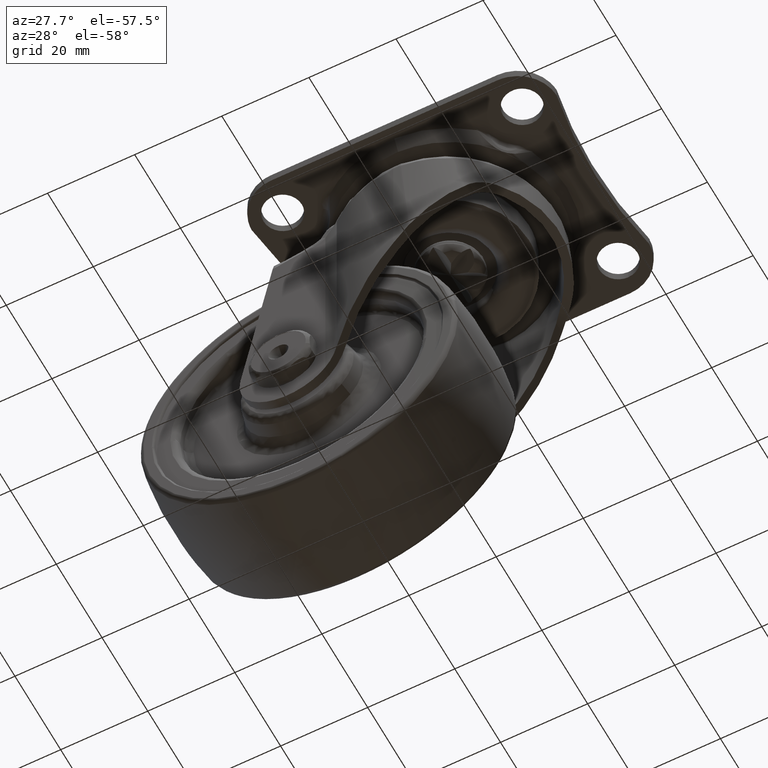
[diagram: clean part render]
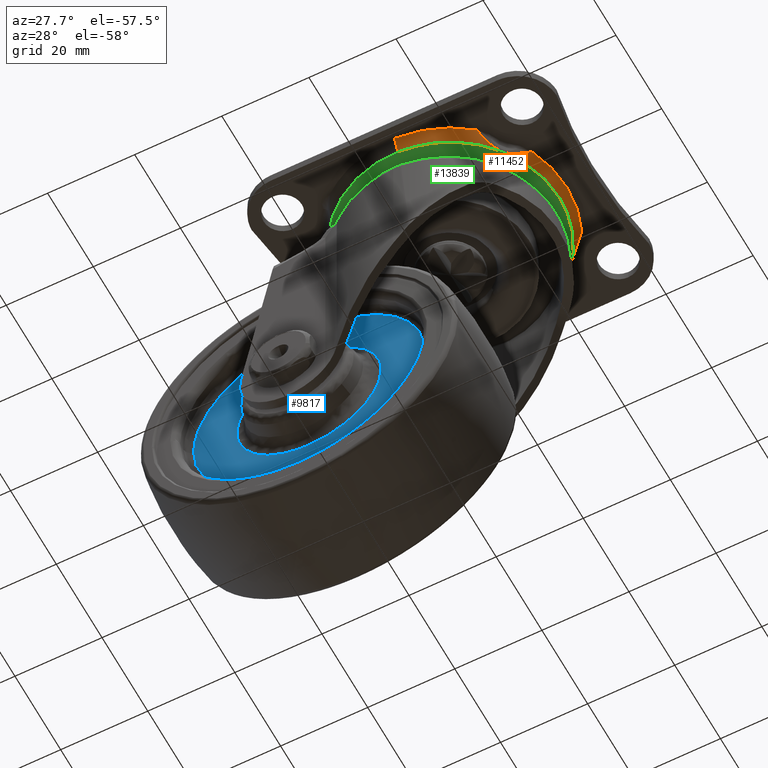
[diagram: same view with three faces highlighted in distinct colors, each labeled with its STEP entity id]
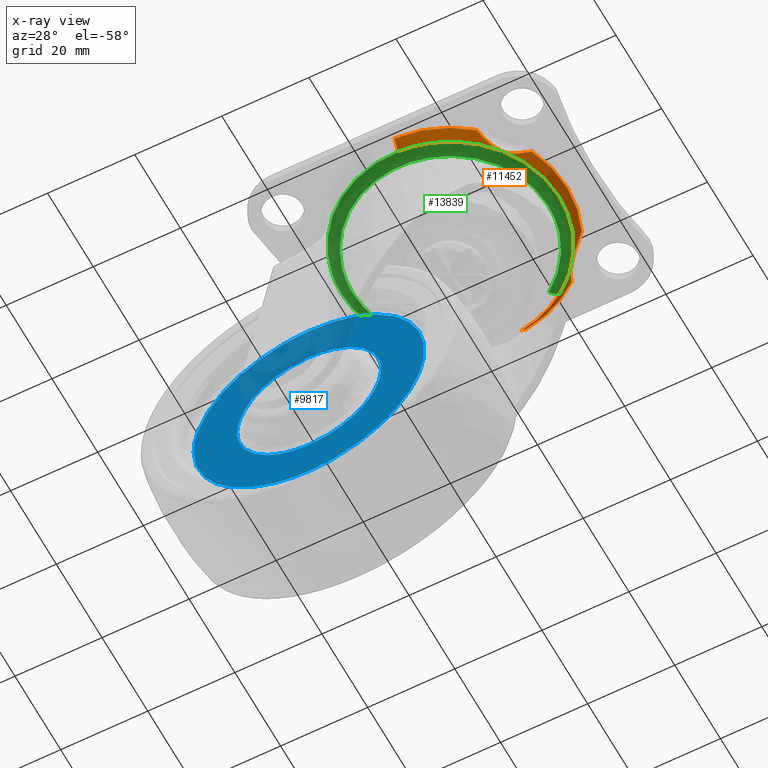
[diagram: x-ray of the same camera — body ghosted, the three highlighted faces saturated]
A machine part, auxiliary view with three faces highlighted in distinct colors.
The next image is the same camera in x-ray (body ghosted, the three faces saturated) — at least one of them is partly hidden behind the body in this view.
Their STEP definitions:

[orange] entity #11452 — the highlighted face is a freeform B-spline surface patch.
#11155=CARTESIAN_POINT('',(3.283637702948342,24.797609182658551,-5.336904997955588));
#11156=VERTEX_POINT('',#11155);
#11187=CARTESIAN_POINT('',(1.094881871424335,-24.990096671537049,-5.336904999992546));
#11188=VERTEX_POINT('',#11187);
#11204=CARTESIAN_POINT('',(1.170558709874944,-26.717380267707600,-2.681590920089541));
#11205=VERTEX_POINT('',#11204);
#11206=CARTESIAN_POINT('',(1.094881871424335,-24.990096671537049,-5.336904999992546));
#11207=CARTESIAN_POINT('',(1.170558709874944,-26.717380267707600,-2.681590920089541));
#11208=QUASI_UNIFORM_CURVE('',1,(#11206,#11207),.UNSPECIFIED.,.F.,.U.);
#11209=EDGE_CURVE('',#11188,#11205,#11208,.T.);
#11281=CARTESIAN_POINT('',(3.510595644554331,26.511566337994591,-2.681544139607476));
#11282=VERTEX_POINT('',#11281);
#11296=CARTESIAN_POINT('',(3.283637702948342,24.797609182658551,-5.336904997955588));
#11297=CARTESIAN_POINT('',(3.510595644554331,26.511566337994591,-2.681544139607476));
#11298=QUASI_UNIFORM_CURVE('',1,(#11296,#11297),.UNSPECIFIED.,.F.,.U.);
#11299=EDGE_CURVE('',#11156,#11282,#11298,.T.);
#11304=CARTESIAN_POINT('',(1.092989993032756,-24.946915553969781,-5.403288964165967));
#11305=CARTESIAN_POINT('',(26.039905547002522,-23.853925560937022,-5.403288964165967));
#11306=CARTESIAN_POINT('',(24.946915553969770,1.092989993032742,-5.403288964165967));
#11307=CARTESIAN_POINT('',(24.030628960200151,22.006744394918016,-5.403288964165967));
#11308=CARTESIAN_POINT('',(3.277963810090154,24.754760674292680,-5.403288964165968));
#11309=CARTESIAN_POINT('',(1.172496180607248,-26.761602019612010,-2.613502870087913));
#11310=CARTESIAN_POINT('',(27.934098200219239,-25.589105839004766,-2.613502870087913));
#11311=CARTESIAN_POINT('',(26.761602019611999,1.172496180607234,-2.613502870087913));
#11312=CARTESIAN_POINT('',(25.778662982306173,23.607557173552323,-2.613502870087912));
#11313=CARTESIAN_POINT('',(3.516409182150953,26.555469425587706,-2.613502870087914));
#11321=(BOUNDED_SURFACE()B_SPLINE_SURFACE(2,1,((#11304,#11309),(#11305,#11310),(#11306,#11311),(#11307,#11312),(#11308,#11313)),.UNSPECIFIED.,.F.,.F.,.U.)B_SPLINE_SURFACE_WITH_KNOTS((3,2,3),(2,2),(0.0,44.382610045699948,83.439306885915897),(0.0,3.329011062336535),.UNSPECIFIED.)GEOMETRIC_REPRESENTATION_ITEM()RATIONAL_B_SPLINE_SURFACE(((1.0,1.0),(0.707106781186548,0.707106781186548),(1.0,1.0),(0.742253967444162,0.742253967444162),(0.938140952186599,0.938140952186599)))REPRESENTATION_ITEM('')SURFACE());
#11322=CARTESIAN_POINT('',(14.332695343603440,20.500671502809482,-5.336904901848820));
#11323=VERTEX_POINT('',#11322);
#11324=CARTESIAN_POINT('',(3.283637702948342,24.797609182658551,-5.336904997955588));
#11325=CARTESIAN_POINT('',(9.332216365766131,23.996671409819310,-5.336904977874955));
#11326=CARTESIAN_POINT('',(14.332695343603442,20.500671502809489,-5.336904901848820));
#11334=(BOUNDED_CURVE()B_SPLINE_CURVE(2,(#11324,#11325,#11326),.UNSPECIFIED.,.F.,.U.)B_SPLINE_CURVE_WITH_KNOTS((3,3),(0.272687126475683,0.348488271145880),.UNSPECIFIED.)CURVE()GEOMETRIC_REPRESENTATION_ITEM()RATIONAL_B_SPLINE_CURVE((0.951664877974533,0.878976439143544,0.860141114567713))REPRESENTATION_ITEM(''));
#11335=EDGE_CURVE('',#11156,#11323,#11334,.T.);
#11336=ORIENTED_EDGE('',*,*,#11335,.F.);
#11337=ORIENTED_EDGE('',*,*,#11299,.T.);
#11338=CARTESIAN_POINT('',(16.923396694074398,20.707128679232550,-2.681546433358110));
#11339=VERTEX_POINT('',#11338);
#11340=CARTESIAN_POINT('',(3.510595644554331,26.511566337994591,-2.681544139607476));
#11341=CARTESIAN_POINT('',(11.041389117060669,25.514338836589307,-2.681544997755576));
#11342=CARTESIAN_POINT('',(16.923396694074398,20.707128679232550,-2.681546433358110));
#11350=(BOUNDED_CURVE()B_SPLINE_CURVE(2,(#11340,#11341,#11342),.UNSPECIFIED.,.F.,.U.)B_SPLINE_CURVE_WITH_KNOTS((3,3),(0.592414418100761,1.0),.UNSPECIFIED.)CURVE()GEOMETRIC_REPRESENTATION_ITEM()RATIONAL_B_SPLINE_CURVE((0.891006852976077,0.908009373427011,1.0))REPRESENTATION_ITEM(''));
#11351=EDGE_CURVE('',#11282,#11339,#11350,.T.);
#11352=ORIENTED_EDGE('',*,*,#11351,.T.);
#11353=CARTESIAN_POINT('',(24.432678122186751,10.873647035149441,-2.681558286846105));
#11354=VERTEX_POINT('',#11353);
#11355=CARTESIAN_POINT('',(16.923396694074398,20.707128679232550,-2.681546433358110));
#11356=CARTESIAN_POINT('',(16.959476209559710,20.624237199548570,-2.745023668475268));
#11357=CARTESIAN_POINT('',(17.072956316216992,20.364707727036340,-2.941403772775208));
#11358=CARTESIAN_POINT('',(17.265224100468899,19.931181044673082,-3.258082135539941));
#11359=CARTESIAN_POINT('',(17.502477298147902,19.408855884505279,-3.617863449230749));
#11360=CARTESIAN_POINT('',(17.740843929578030,18.898215233974611,-3.947214621208377));
#11361=CARTESIAN_POINT('',(18.169607694862290,18.005009015585848,-4.482426018704327));
#11362=CARTESIAN_POINT('',(18.815496821407059,16.764068200806989,-5.086689961431429));
#11363=CARTESIAN_POINT('',(19.869884563908631,15.168243004630479,-5.397430747311278));
#11364=CARTESIAN_POINT('',(21.132343390763879,13.732833152639460,-5.083574954406630));
#11365=CARTESIAN_POINT('',(22.304517048367710,12.649556383199389,-4.393791752733161));
#11366=CARTESIAN_POINT('',(23.352542966424810,11.753914702586890,-3.613187368044796));
#11367=CARTESIAN_POINT('',(23.998929724998881,11.222537977420700,-3.072151709919865));
#11368=CARTESIAN_POINT('',(24.362388286578941,10.930029070077341,-2.745415735215331));
#11369=CARTESIAN_POINT('',(24.432678122186751,10.873647035149441,-2.681558286846105));
#11370=B_SPLINE_CURVE_WITH_KNOTS('',3,(#11355,#11356,#11357,#11358,#11359,#11360,#11361,#11362,#11363,#11364,#11365,#11366,#11367,#11368,#11369),.UNSPECIFIED.,.F.,.U.,(4,1,1,1,1,1,1,1,1,1,1,1,4),(0.071794579712360,0.092374084994704,0.136005364772001,0.178026970883490,0.218519968372902,0.257574848939736,0.387883343328172,0.500350351611895,0.612488444453185,0.742726897194357,0.822091862652027,0.907643145491309,0.928222205426478),.UNSPECIFIED.);
#11371=EDGE_CURVE('',#11339,#11354,#11370,.T.);
#11372=ORIENTED_EDGE('',*,*,#11371,.T.);
#11373=CARTESIAN_POINT('',(24.432516070442649,-10.873761643096040,-2.681546433358110));
#11374=VERTEX_POINT('',#11373);
#11375=CARTESIAN_POINT('',(24.432678122186751,10.873647035149441,-2.681558286846105));
#11376=CARTESIAN_POINT('',(29.271919797872830,-0.000072739264834,-2.681552360102107));
#11377=CARTESIAN_POINT('',(24.432516070442649,-10.873761643096040,-2.681546433358110));
#11385=(BOUNDED_CURVE()B_SPLINE_CURVE(2,(#11375,#11376,#11377),.UNSPECIFIED.,.F.,.U.)CURVE()GEOMETRIC_REPRESENTATION_ITEM()QUASI_UNIFORM_CURVE()RATIONAL_B_SPLINE_CURVE((1.0,0.913606425390640,1.0))REPRESENTATION_ITEM(''));
#11386=EDGE_CURVE('',#11354,#11374,#11385,.T.);
#11387=ORIENTED_EDGE('',*,*,#11386,.T.);
#11388=CARTESIAN_POINT('',(16.923357323590999,-20.707160855640350,-2.681546433358110));
#11389=VERTEX_POINT('',#11388);
#11390=CARTESIAN_POINT('',(24.432516070442649,-10.873761643096040,-2.681546433358110));
#11391=CARTESIAN_POINT('',(24.362049836409099,-10.930393748703340,-2.745023100823632));
#11392=CARTESIAN_POINT('',(24.141559318651701,-11.108204846892511,-2.941401425796306));
#11393=CARTESIAN_POINT('',(23.773957345949970,-11.407837733432720,-3.258076805672700));
#11394=CARTESIAN_POINT('',(23.332535610445401,-11.774249668368400,-3.617854503470382));
#11395=CARTESIAN_POINT('',(22.902679235243969,-12.138659126141899,-3.947202115210363));
#11396=CARTESIAN_POINT('',(22.153891098707589,-12.787478412678380,-4.482407238753336));
#11397=CARTESIAN_POINT('',(21.126810874778840,-13.737321208619999,-5.086662267774504));
#11398=CARTESIAN_POINT('',(19.864931754704639,-15.174689345370551,-5.397390711776832));
#11399=CARTESIAN_POINT('',(18.812594556998949,-16.770546736961229,-5.083522584066095));
#11400=CARTESIAN_POINT('',(18.076191126871759,-18.186586168988800,-4.393729211679108));
#11401=CARTESIAN_POINT('',(17.488111970147440,-19.433453662762901,-3.613116108041110));
#11402=CARTESIAN_POINT('',(17.145700945927331,-20.196913071473041,-3.072096540187697));
#11403=CARTESIAN_POINT('',(16.959229065929719,-20.624535142182740,-2.745381365994009));
#11404=CARTESIAN_POINT('',(16.923357323590999,-20.707160855640350,-2.681546433358110));
#11405=B_SPLINE_CURVE_WITH_KNOTS('',3,(#11390,#11391,#11392,#11393,#11394,#11395,#11396,#11397,#11398,#11399,#11400,#11401,#11402,#11403,#11404),.UNSPECIFIED.,.F.,.U.,(4,1,1,1,1,1,1,1,1,1,1,1,4),(0.071794579712430,0.092374084995471,0.136005364772854,0.178026970884233,0.218519968373342,0.257574848939678,0.387883343327662,0.500350351611862,0.612488444452482,0.742726897194326,0.822091862650179,0.907643145489459,0.928214882234636),.UNSPECIFIED.);
#11406=EDGE_CURVE('',#11374,#11389,#11405,.T.);
#11407=ORIENTED_EDGE('',*,*,#11406,.T.);
#11408=CARTESIAN_POINT('',(16.923357323590999,-20.707160855640350,-2.681546433358110));
#11409=CARTESIAN_POINT('',(10.045145659853175,-26.328510573036322,-2.681563890555316));
#11410=CARTESIAN_POINT('',(1.170558709874944,-26.717380267707604,-2.681590920089542));
#11418=(BOUNDED_CURVE()B_SPLINE_CURVE(2,(#11408,#11409,#11410),.UNSPECIFIED.,.F.,.U.)B_SPLINE_CURVE_WITH_KNOTS((3,3),(0.0,0.469302746160513),.UNSPECIFIED.)CURVE()GEOMETRIC_REPRESENTATION_ITEM()RATIONAL_B_SPLINE_CURVE((1.0,0.894080095714485,0.887577195337471))REPRESENTATION_ITEM(''));
#11419=EDGE_CURVE('',#11389,#11205,#11418,.T.);
#11420=ORIENTED_EDGE('',*,*,#11419,.T.);
#11421=ORIENTED_EDGE('',*,*,#11209,.F.);
#11422=CARTESIAN_POINT('',(25.014070000000000,-1.421085E-014,-5.336904999999921));
#11423=VERTEX_POINT('',#11422);
#11424=CARTESIAN_POINT('',(25.014070000000000,-1.421085E-014,-5.336904999999921));
#11425=CARTESIAN_POINT('',(25.014069999999993,-23.942134120349593,-5.336904999999921));
#11426=CARTESIAN_POINT('',(1.094881871424335,-24.990096671537053,-5.336904999992547));
#11434=(BOUNDED_CURVE()B_SPLINE_CURVE(2,(#11424,#11425,#11426),.UNSPECIFIED.,.F.,.U.)B_SPLINE_CURVE_WITH_KNOTS((3,3),(0.500000000000000,0.742328240502856),.UNSPECIFIED.)CURVE()GEOMETRIC_REPRESENTATION_ITEM()RATIONAL_B_SPLINE_CURVE((1.0,0.716094806518872,0.982575581084981))REPRESENTATION_ITEM(''));
#11435=EDGE_CURVE('',#11423,#11188,#11434,.T.);
#11436=ORIENTED_EDGE('',*,*,#11435,.F.);
#11437=CARTESIAN_POINT('',(14.332695343603440,20.500671502809485,-5.336904901848820));
#11438=CARTESIAN_POINT('',(25.014070000000000,13.032970567437694,-5.336904999999922));
#11439=CARTESIAN_POINT('',(25.014070000000000,-1.421085E-014,-5.336904999999921));
#11447=(BOUNDED_CURVE()B_SPLINE_CURVE(2,(#11437,#11438,#11439),.UNSPECIFIED.,.F.,.U.)B_SPLINE_CURVE_WITH_KNOTS((3,3),(0.348488271145880,0.500000000000000),.UNSPECIFIED.)CURVE()GEOMETRIC_REPRESENTATION_ITEM()RATIONAL_B_SPLINE_CURVE((0.860141114567713,0.822492968191703,1.0))REPRESENTATION_ITEM(''));
#11448=EDGE_CURVE('',#11323,#11423,#11447,.T.);
#11449=ORIENTED_EDGE('',*,*,#11448,.F.);
#11450=EDGE_LOOP('',(#11336,#11337,#11352,#11372,#11387,#11407,#11420,#11421,#11436,#11449));
#11451=FACE_OUTER_BOUND('',#11450,.T.);
#11452=ADVANCED_FACE('',(#11451),#11321,.T.);

[blue] entity #9817 — the highlighted face is a freeform B-spline surface patch.
#7724=CARTESIAN_POINT('',(-44.118189326483943,-8.499999999999881,-59.209332737446928));
#7725=VERTEX_POINT('',#7724);
#7739=CARTESIAN_POINT('',(-28.0,-8.499999999999879,-72.039508170618205));
#7740=VERTEX_POINT('',#7739);
#7741=CARTESIAN_POINT('',(-44.118189326483929,-8.499999999999883,-59.209332737446928));
#7742=CARTESIAN_POINT('',(-41.165542984019304,-8.499999999999881,-72.039508170618205));
#7743=CARTESIAN_POINT('',(-28.0,-8.499999999999879,-72.039508170618205));
#7751=(BOUNDED_CURVE()B_SPLINE_CURVE(2,(#7741,#7742,#7743),.UNSPECIFIED.,.F.,.U.)B_SPLINE_CURVE_WITH_KNOTS((3,3),(0.788352912386074,1.0),.UNSPECIFIED.)CURVE()GEOMETRIC_REPRESENTATION_ITEM()RATIONAL_B_SPLINE_CURVE((0.923920098754385,0.752040013025057,1.0))REPRESENTATION_ITEM(''));
#7752=EDGE_CURVE('',#7725,#7740,#7751,.T.);
#7754=CARTESIAN_POINT('',(-11.881810673516069,-8.499999999999881,-51.790679262552679));
#7755=VERTEX_POINT('',#7754);
#7756=CARTESIAN_POINT('',(-28.0,-8.499999999999879,-72.039508170618205));
#7757=CARTESIAN_POINT('',(-11.460497829381598,-8.499999999999879,-72.039508170618220));
#7758=CARTESIAN_POINT('',(-11.460497829381600,-8.499999999999879,-55.500005999999800));
#7759=CARTESIAN_POINT('',(-11.460497829381600,-8.499999999999879,-53.621415848063222));
#7760=CARTESIAN_POINT('',(-11.881810673516069,-8.499999999999881,-51.790679262552686));
#7768=(BOUNDED_CURVE()B_SPLINE_CURVE(2,(#7756,#7757,#7758,#7759,#7760),.UNSPECIFIED.,.F.,.U.)B_SPLINE_CURVE_WITH_KNOTS((3,2,3),(0.0,0.250000000000000,0.288352912386074),.UNSPECIFIED.)CURVE()GEOMETRIC_REPRESENTATION_ITEM()RATIONAL_B_SPLINE_CURVE((1.0,0.707106781186548,1.0,0.955066768161490,0.923920098754385))REPRESENTATION_ITEM(''));
#7769=EDGE_CURVE('',#7740,#7755,#7768,.T.);
#7815=CARTESIAN_POINT('',(-28.0,-8.499999999999879,-38.960503829381402));
#7816=VERTEX_POINT('',#7815);
#7817=CARTESIAN_POINT('',(-11.881810673516069,-8.499999999999881,-51.790679262552686));
#7818=CARTESIAN_POINT('',(-14.834457015980705,-8.499999999999879,-38.960503829381416));
#7819=CARTESIAN_POINT('',(-28.0,-8.499999999999879,-38.960503829381402));
#7827=(BOUNDED_CURVE()B_SPLINE_CURVE(2,(#7817,#7818,#7819),.UNSPECIFIED.,.F.,.U.)B_SPLINE_CURVE_WITH_KNOTS((3,3),(0.288352912386074,0.500000000000000),.UNSPECIFIED.)CURVE()GEOMETRIC_REPRESENTATION_ITEM()RATIONAL_B_SPLINE_CURVE((0.923920098754385,0.752040013025057,1.0))REPRESENTATION_ITEM(''));
#7828=EDGE_CURVE('',#7755,#7816,#7827,.T.);
#7830=CARTESIAN_POINT('',(-28.0,-8.499999999999879,-38.960503829381402));
#7831=CARTESIAN_POINT('',(-44.539502170618405,-8.499999999999879,-38.960503829381409));
#7832=CARTESIAN_POINT('',(-44.539502170618412,-8.499999999999879,-55.500005999999800));
#7833=CARTESIAN_POINT('',(-44.539502170618405,-8.499999999999881,-57.378596151936399));
#7834=CARTESIAN_POINT('',(-44.118189326483950,-8.499999999999881,-59.209332737446928));
#7842=(BOUNDED_CURVE()B_SPLINE_CURVE(2,(#7830,#7831,#7832,#7833,#7834),.UNSPECIFIED.,.F.,.U.)B_SPLINE_CURVE_WITH_KNOTS((3,2,3),(0.500000000000000,0.750000000000000,0.788352912386074),.UNSPECIFIED.)CURVE()GEOMETRIC_REPRESENTATION_ITEM()RATIONAL_B_SPLINE_CURVE((1.0,0.707106781186548,1.0,0.955066768161490,0.923920098754384))REPRESENTATION_ITEM(''));
#7843=EDGE_CURVE('',#7816,#7725,#7842,.T.);
#7879=CARTESIAN_POINT('',(-1.677241569952105,-8.499999999999879,-58.559808077466130));
#7880=VERTEX_POINT('',#7879);
#7881=CARTESIAN_POINT('',(-28.0,-8.499999999999879,-29.000005999999800));
#7882=VERTEX_POINT('',#7881);
#7883=CARTESIAN_POINT('',(-1.677241569952105,-8.499999999999879,-58.559808077466137));
#7884=CARTESIAN_POINT('',(-1.500000000000002,-8.499999999999879,-57.035040471131516));
#7885=CARTESIAN_POINT('',(-1.500000000000001,-8.499999999999879,-55.500005999999800));
#7886=CARTESIAN_POINT('',(-1.500000000000001,-8.499999999999879,-29.000005999999807));
#7887=CARTESIAN_POINT('',(-28.0,-8.499999999999879,-29.000005999999800));
#7895=(BOUNDED_CURVE()B_SPLINE_CURVE(2,(#7883,#7884,#7885,#7886,#7887),.UNSPECIFIED.,.F.,.U.)B_SPLINE_CURVE_WITH_KNOTS((3,2,3),(0.229999999999517,0.250000000000000,0.500000000000000),.UNSPECIFIED.)CURVE()GEOMETRIC_REPRESENTATION_ITEM()RATIONAL_B_SPLINE_CURVE((0.956886118189709,0.976568542494358,1.0,0.707106781186548,1.0))REPRESENTATION_ITEM(''));
#7896=EDGE_CURVE('',#7880,#7882,#7895,.T.);
#7915=CARTESIAN_POINT('',(-54.500000000594603,-8.499999999999879,-55.500005999999800));
#7916=VERTEX_POINT('',#7915);
#7930=CARTESIAN_POINT('',(-28.0,-8.499999999999879,-29.000005999999800));
#7931=CARTESIAN_POINT('',(-54.499999999999879,-8.499999999999881,-29.000005999999807));
#7932=CARTESIAN_POINT('',(-54.500000000594603,-8.499999999999879,-55.500005999999807));
#7940=(BOUNDED_CURVE()B_SPLINE_CURVE(2,(#7930,#7931,#7932),.UNSPECIFIED.,.F.,.U.)B_SPLINE_CURVE_WITH_KNOTS((3,3),(0.500000000000000,0.749999999999999),.UNSPECIFIED.)CURVE()GEOMETRIC_REPRESENTATION_ITEM()RATIONAL_B_SPLINE_CURVE((1.0,0.707106781186549,0.999999999999998))REPRESENTATION_ITEM(''));
#7941=EDGE_CURVE('',#7882,#7916,#7940,.T.);
#7969=CARTESIAN_POINT('',(-28.0,-8.499999999999879,-82.000005999999800));
#7970=VERTEX_POINT('',#7969);
#7971=CARTESIAN_POINT('',(-28.0,-8.499999999999879,-82.000005999999800));
#7972=CARTESIAN_POINT('',(-4.401969928153869,-8.499999999999879,-82.000005999999814));
#7973=CARTESIAN_POINT('',(-1.677241569952105,-8.499999999999879,-58.559808077466137));
#7981=(BOUNDED_CURVE()B_SPLINE_CURVE(2,(#7971,#7972,#7973),.UNSPECIFIED.,.F.,.U.)B_SPLINE_CURVE_WITH_KNOTS((3,3),(0.0,0.229999999999517),.UNSPECIFIED.)CURVE()GEOMETRIC_REPRESENTATION_ITEM()RATIONAL_B_SPLINE_CURVE((1.0,0.730538238692190,0.956886118189709))REPRESENTATION_ITEM(''));
#7982=EDGE_CURVE('',#7970,#7880,#7981,.T.);
#7984=CARTESIAN_POINT('',(-54.500000000594603,-8.499999999999879,-55.500005999999800));
#7985=CARTESIAN_POINT('',(-54.500000000000014,-8.499999999999879,-82.000005999999814));
#7986=CARTESIAN_POINT('',(-28.0,-8.499999999999879,-82.000005999999800));
#7994=(BOUNDED_CURVE()B_SPLINE_CURVE(2,(#7984,#7985,#7986),.UNSPECIFIED.,.F.,.U.)B_SPLINE_CURVE_WITH_KNOTS((3,3),(0.750000000000000,1.0),.UNSPECIFIED.)CURVE()GEOMETRIC_REPRESENTATION_ITEM()RATIONAL_B_SPLINE_CURVE((1.0,0.707106781186548,1.0))REPRESENTATION_ITEM(''));
#7995=EDGE_CURVE('',#7916,#7970,#7994,.T.);
#9800=CARTESIAN_POINT('',(-57.147342778010042,-8.499999999999879,-84.647357887379840));
#9801=CARTESIAN_POINT('',(-57.147342778010042,-8.499999999999879,-26.352654586476699));
#9802=CARTESIAN_POINT('',(1.147201657789339,-8.499999999999879,-84.647357887379840));
#9803=CARTESIAN_POINT('',(1.147201657789339,-8.499999999999879,-26.352654586476699));
#9804=B_SPLINE_SURFACE_WITH_KNOTS('',1,1,((#9800,#9802),(#9801,#9803)),.UNSPECIFIED.,.F.,.F.,.U.,(2,2),(2,2),(0.0,58.294703300903137),(0.0,58.294544435799367),.UNSPECIFIED.);
#9805=ORIENTED_EDGE('',*,*,#7982,.T.);
#9806=ORIENTED_EDGE('',*,*,#7896,.T.);
#9807=ORIENTED_EDGE('',*,*,#7941,.T.);
#9808=ORIENTED_EDGE('',*,*,#7995,.T.);
#9809=EDGE_LOOP('',(#9805,#9806,#9807,#9808));
#9810=FACE_OUTER_BOUND('',#9809,.T.);
#9811=ORIENTED_EDGE('',*,*,#7769,.F.);
#9812=ORIENTED_EDGE('',*,*,#7752,.F.);
#9813=ORIENTED_EDGE('',*,*,#7843,.F.);
#9814=ORIENTED_EDGE('',*,*,#7828,.F.);
#9815=EDGE_LOOP('',(#9811,#9812,#9813,#9814));
#9816=FACE_BOUND('',#9815,.T.);
#9817=ADVANCED_FACE('',(#9810,#9816),#9804,.F.);

[green] entity #13839 — the highlighted face is a freeform B-spline surface patch.
#11153=CARTESIAN_POINT('',(-21.286835365762691,13.136754850025969,-5.336904901845462));
#11154=VERTEX_POINT('',#11153);
#11172=CARTESIAN_POINT('',(-25.014070000000000,-1.421085E-014,-5.336904999999921));
#11173=VERTEX_POINT('',#11172);
#11174=CARTESIAN_POINT('',(-25.014070000000000,-1.421085E-014,-5.336904999999921));
#11175=CARTESIAN_POINT('',(-25.014070000000000,7.097133505735465,-5.336904999999922));
#11176=CARTESIAN_POINT('',(-21.286835365762695,13.136754850025964,-5.336904901845462));
#11184=(BOUNDED_CURVE()B_SPLINE_CURVE(2,(#11174,#11175,#11176),.UNSPECIFIED.,.F.,.U.)B_SPLINE_CURVE_WITH_KNOTS((3,3),(0.0,0.089762955609368),.UNSPECIFIED.)CURVE()GEOMETRIC_REPRESENTATION_ITEM()RATIONAL_B_SPLINE_CURVE((1.0,0.894836156005452,0.865190851692449))REPRESENTATION_ITEM(''));
#11185=EDGE_CURVE('',#11173,#11154,#11184,.T.);
#11187=CARTESIAN_POINT('',(1.094881871424335,-24.990096671537049,-5.336904999992546));
#11188=VERTEX_POINT('',#11187);
#11189=CARTESIAN_POINT('',(1.094881871424335,-24.990096671537053,-5.336904999992547));
#11190=CARTESIAN_POINT('',(0.547703393489644,-25.014070000000014,-5.336904999999922));
#11191=CARTESIAN_POINT('',(0.0,-25.014070000000011,-5.336904999999921));
#11192=CARTESIAN_POINT('',(-25.014070000000000,-25.014070000000014,-5.336904999999921));
#11193=CARTESIAN_POINT('',(-25.014070000000000,-1.421085E-014,-5.336904999999921));
#11201=(BOUNDED_CURVE()B_SPLINE_CURVE(2,(#11189,#11190,#11191,#11192,#11193),.UNSPECIFIED.,.F.,.U.)B_SPLINE_CURVE_WITH_KNOTS((3,2,3),(0.742328240502856,0.750000000000000,1.0),.UNSPECIFIED.)CURVE()GEOMETRIC_REPRESENTATION_ITEM()RATIONAL_B_SPLINE_CURVE((0.982575581084981,0.991011974667675,1.0,0.707106781186547,1.0))REPRESENTATION_ITEM(''));
#11202=EDGE_CURVE('',#11188,#11173,#11201,.T.);
#11322=CARTESIAN_POINT('',(14.332695343603440,20.500671502809482,-5.336904901848820));
#11323=VERTEX_POINT('',#11322);
#11422=CARTESIAN_POINT('',(25.014070000000000,-1.421085E-014,-5.336904999999921));
#11423=VERTEX_POINT('',#11422);
#11424=CARTESIAN_POINT('',(25.014070000000000,-1.421085E-014,-5.336904999999921));
#11425=CARTESIAN_POINT('',(25.014069999999993,-23.942134120349593,-5.336904999999921));
#11426=CARTESIAN_POINT('',(1.094881871424335,-24.990096671537053,-5.336904999992547));
#11434=(BOUNDED_CURVE()B_SPLINE_CURVE(2,(#11424,#11425,#11426),.UNSPECIFIED.,.F.,.U.)B_SPLINE_CURVE_WITH_KNOTS((3,3),(0.500000000000000,0.742328240502856),.UNSPECIFIED.)CURVE()GEOMETRIC_REPRESENTATION_ITEM()RATIONAL_B_SPLINE_CURVE((1.0,0.716094806518872,0.982575581084981))REPRESENTATION_ITEM(''));
#11435=EDGE_CURVE('',#11423,#11188,#11434,.T.);
#11437=CARTESIAN_POINT('',(14.332695343603440,20.500671502809485,-5.336904901848820));
#11438=CARTESIAN_POINT('',(25.014070000000000,13.032970567437694,-5.336904999999922));
#11439=CARTESIAN_POINT('',(25.014070000000000,-1.421085E-014,-5.336904999999921));
#11447=(BOUNDED_CURVE()B_SPLINE_CURVE(2,(#11437,#11438,#11439),.UNSPECIFIED.,.F.,.U.)B_SPLINE_CURVE_WITH_KNOTS((3,3),(0.348488271145880,0.500000000000000),.UNSPECIFIED.)CURVE()GEOMETRIC_REPRESENTATION_ITEM()RATIONAL_B_SPLINE_CURVE((0.860141114567713,0.822492968191703,1.0))REPRESENTATION_ITEM(''));
#11448=EDGE_CURVE('',#11323,#11423,#11447,.T.);
#13729=CARTESIAN_POINT('',(14.375513402473256,20.561916016632306,-5.215958079566830));
#13730=CARTESIAN_POINT('',(33.793229523730851,6.986350484666974,-5.215958079566827));
#13731=CARTESIAN_POINT('',(21.350428496407662,-13.176000109271156,-5.215958079566830));
#13732=CARTESIAN_POINT('',(8.174428387136514,-34.526428605678802,-5.215958079566829));
#13733=CARTESIAN_POINT('',(-13.176000109271145,-21.350428496407673,-5.215958079566830));
#13734=CARTESIAN_POINT('',(-34.526428605678795,-8.174428387136532,-5.215958079566829));
#13735=CARTESIAN_POINT('',(-21.350428496407662,13.176000109271124,-5.215958079566830));
#13736=CARTESIAN_POINT('',(13.849927768474956,19.810148245753101,-6.782388836027384));
#13737=CARTESIAN_POINT('',(32.557709409296237,6.730921315216491,-6.782388836027384));
#13738=CARTESIAN_POINT('',(20.569831784258980,-12.694270088428800,-6.782388836027387));
#13739=CARTESIAN_POINT('',(7.875561695830196,-33.264101872687775,-6.782388836027386));
#13740=CARTESIAN_POINT('',(-12.694270088428789,-20.569831784258994,-6.782388836027387));
#13741=CARTESIAN_POINT('',(-33.264101872687775,-7.875561695830213,-6.782388836027386));
#13742=CARTESIAN_POINT('',(-20.569831784258980,12.694270088428775,-6.782388836027387));
#13743=CARTESIAN_POINT('',(12.810981980743707,18.324099335006824,-6.696652963669275));
#13744=CARTESIAN_POINT('',(30.115408220840955,6.226004432984643,-6.696652963669274));
#13745=CARTESIAN_POINT('',(19.026795571807362,-11.742015415540491,-6.696652963669274));
#13746=CARTESIAN_POINT('',(7.284780156266880,-30.768810987347852,-6.696652963669274));
#13747=CARTESIAN_POINT('',(-11.742015415540479,-19.026795571807373,-6.696652963669274));
#13748=CARTESIAN_POINT('',(-30.768810987347834,-7.284780156266897,-6.696652963669274));
#13749=CARTESIAN_POINT('',(-19.026795571807362,11.742015415540457,-6.696652963669274));
#13757=(BOUNDED_SURFACE()B_SPLINE_SURFACE(2,2,((#13729,#13736,#13743),(#13730,#13737,#13744),(#13731,#13738,#13745),(#13732,#13739,#13746),(#13733,#13740,#13747),(#13734,#13741,#13748),(#13735,#13742,#13749)),.UNSPECIFIED.,.F.,.F.,.U.)B_SPLINE_SURFACE_WITH_KNOTS((3,2,2,3),(3,3),(0.0,39.905742025291957,81.474223301637764,123.042704577983600),(0.0,3.347896619877823),.UNSPECIFIED.)GEOMETRIC_REPRESENTATION_ITEM()RATIONAL_B_SPLINE_SURFACE(((0.902735852144897,0.773594603124585,0.905640300653863),(0.663839386449633,0.568873569692393,0.665975213127598),(0.923509457857529,0.791396432118688,0.926480743047451),(0.653019800140971,0.559601783757964,0.655120816047604),(0.923509457857529,0.791396432118688,0.926480743047451),(0.653019800140971,0.559601783757964,0.655120816047604),(0.923509457857529,0.791396432118688,0.926480743047451)))REPRESENTATION_ITEM('')SURFACE());
#13758=CARTESIAN_POINT('',(12.892170203548851,18.440226346839619,-6.700000999999899));
#13759=VERTEX_POINT('',#13758);
#13760=CARTESIAN_POINT('',(22.500000000000000,-1.421085E-014,-6.700000999999900));
#13761=VERTEX_POINT('',#13760);
#13762=CARTESIAN_POINT('',(12.892170203548854,18.440226346839626,-6.700000999999900));
#13763=CARTESIAN_POINT('',(22.500000000000000,11.723075763403976,-6.700000999999900));
#13764=CARTESIAN_POINT('',(22.500000000000000,-1.421085E-014,-6.700000999999900));
#13772=(BOUNDED_CURVE()B_SPLINE_CURVE(2,(#13762,#13763,#13764),.UNSPECIFIED.,.F.,.U.)B_SPLINE_CURVE_WITH_KNOTS((3,3),(0.348488271148539,0.500000000000000),.UNSPECIFIED.)CURVE()GEOMETRIC_REPRESENTATION_ITEM()RATIONAL_B_SPLINE_CURVE((0.860141114566391,0.822492968194819,1.0))REPRESENTATION_ITEM(''));
#13773=EDGE_CURVE('',#13759,#13761,#13772,.T.);
#13774=ORIENTED_EDGE('',*,*,#13773,.F.);
#13775=CARTESIAN_POINT('',(14.332695343603449,20.500671502809482,-5.336904901848820));
#13776=CARTESIAN_POINT('',(13.824166048686058,19.773300148303431,-6.700000993253848));
#13777=CARTESIAN_POINT('',(12.892170203548851,18.440226346839619,-6.700000999999900));
#13785=(BOUNDED_CURVE()B_SPLINE_CURVE(2,(#13775,#13776,#13777),.UNSPECIFIED.,.F.,.U.)B_SPLINE_CURVE_WITH_KNOTS((3,3),(-1.616354907359726,-0.368381192613455),.UNSPECIFIED.)CURVE()GEOMETRIC_REPRESENTATION_ITEM()RATIONAL_B_SPLINE_CURVE((0.891545047693744,0.784917324821878,0.894185660890085))REPRESENTATION_ITEM(''));
#13786=EDGE_CURVE('',#11323,#13759,#13785,.T.);
#13787=ORIENTED_EDGE('',*,*,#13786,.F.);
#13788=ORIENTED_EDGE('',*,*,#11448,.T.);
#13789=ORIENTED_EDGE('',*,*,#11435,.T.);
#13790=ORIENTED_EDGE('',*,*,#11202,.T.);
#13791=ORIENTED_EDGE('',*,*,#11185,.T.);
#13792=CARTESIAN_POINT('',(-19.147375845620608,11.816429177609360,-6.700000999999899));
#13793=VERTEX_POINT('',#13792);
#13794=CARTESIAN_POINT('',(-21.286835365762695,13.136754850025964,-5.336904901845462));
#13795=CARTESIAN_POINT('',(-20.531570628621171,12.670657963222508,-6.700000993182470));
#13796=CARTESIAN_POINT('',(-19.147375845620605,11.816429177609363,-6.700000999999900));
#13804=(BOUNDED_CURVE()B_SPLINE_CURVE(2,(#13794,#13795,#13796),.UNSPECIFIED.,.F.,.U.)B_SPLINE_CURVE_WITH_KNOTS((3,3),(-1.616354907363219,-0.368381192670989),.UNSPECIFIED.)CURVE()GEOMETRIC_REPRESENTATION_ITEM()RATIONAL_B_SPLINE_CURVE((0.912061132495722,0.802979710389460,0.914762511028229))REPRESENTATION_ITEM(''));
#13805=EDGE_CURVE('',#11154,#13793,#13804,.T.);
#13806=ORIENTED_EDGE('',*,*,#13805,.T.);
#13807=CARTESIAN_POINT('',(-22.500000000000000,-1.421085E-014,-6.700000999999900));
#13808=VERTEX_POINT('',#13807);
#13809=CARTESIAN_POINT('',(-22.500000000000000,-1.421085E-014,-6.700000999999900));
#13810=CARTESIAN_POINT('',(-22.499999999999996,6.383827337557237,-6.700000999999901));
#13811=CARTESIAN_POINT('',(-19.147375845620608,11.816429177609358,-6.700000999999899));
#13819=(BOUNDED_CURVE()B_SPLINE_CURVE(2,(#13809,#13810,#13811),.UNSPECIFIED.,.F.,.U.)B_SPLINE_CURVE_WITH_KNOTS((3,3),(0.0,0.089762955614661),.UNSPECIFIED.)CURVE()GEOMETRIC_REPRESENTATION_ITEM()RATIONAL_B_SPLINE_CURVE((1.0,0.894836155999251,0.865190851688953))REPRESENTATION_ITEM(''));
#13820=EDGE_CURVE('',#13808,#13793,#13819,.T.);
#13821=ORIENTED_EDGE('',*,*,#13820,.F.);
#13822=CARTESIAN_POINT('',(22.500000000000000,-1.421085E-014,-6.700000999999900));
#13823=CARTESIAN_POINT('',(22.500000000000000,-22.500000000000014,-6.700000999999900));
#13824=CARTESIAN_POINT('',(0.0,-22.500000000000011,-6.700000999999900));
#13825=CARTESIAN_POINT('',(-22.500000000000000,-22.500000000000014,-6.700000999999900));
#13826=CARTESIAN_POINT('',(-22.500000000000000,-1.421085E-014,-6.700000999999900));
#13834=(BOUNDED_CURVE()B_SPLINE_CURVE(2,(#13822,#13823,#13824,#13825,#13826),.UNSPECIFIED.,.F.,.U.)B_SPLINE_CURVE_WITH_KNOTS((3,2,3),(0.500000000000000,0.750000000000000,1.0),.UNSPECIFIED.)CURVE()GEOMETRIC_REPRESENTATION_ITEM()RATIONAL_B_SPLINE_CURVE((1.0,0.707106781186548,1.0,0.707106781186548,1.0))REPRESENTATION_ITEM(''));
#13835=EDGE_CURVE('',#13761,#13808,#13834,.T.);
#13836=ORIENTED_EDGE('',*,*,#13835,.F.);
#13837=EDGE_LOOP('',(#13774,#13787,#13788,#13789,#13790,#13791,#13806,#13821,#13836));
#13838=FACE_OUTER_BOUND('',#13837,.T.);
#13839=ADVANCED_FACE('',(#13838),#13757,.T.);